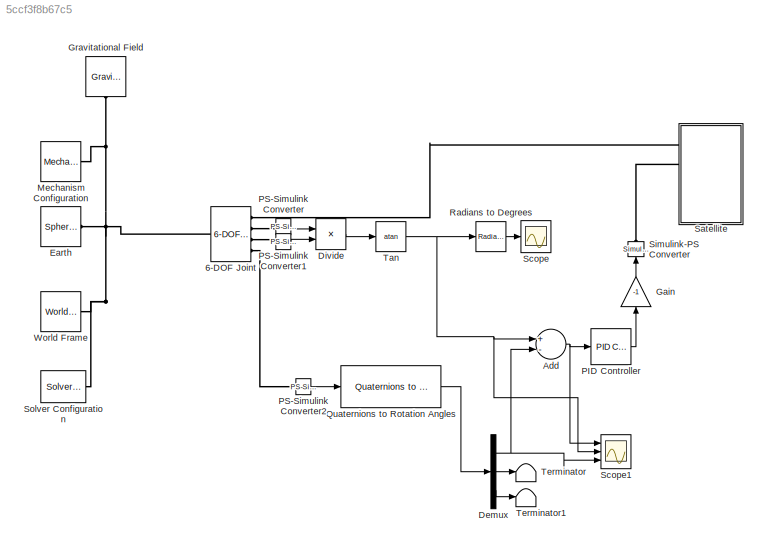
MODEL slx_5ccf3f8b67c5
KIND model
CONFIG AbsTol = auto
CONFIG EnableMultiTasking = off
CONFIG FixedStep = auto
CONFIG MaxStep = auto
CONFIG MinStep = auto
CONFIG RelTol = 1e-3
CONFIG SampleTimeConstraint = Unconstrained
CONFIG Solver = VariableStepAuto
CONFIG SolverName = VariableStepAuto
CONFIG StartTime = 0.0
CONFIG StopTime = 1000
WORKSPACE source: MATLAB code (in-file)
WORKSPACE Re = 6378e3  (= 6378000)
WORKSPACE h = 600e3  (= 600000)
WORKSPACE G = 6.67408e-11
WORKSPACE Me = 5.972e24  (= 5.972e+24)
WORKSPACE code: Sat.Vy = sqrt(G*Me/(Re+h));
BLOCK [Reference] 6-DOF Joint  REF=sm_lib/Joints/6-DOF Joint
  Ports = [0, 0, 0, 0, 0, 1, 4]
  SourceBlock = sm_lib/Joints/6-DOF Joint
  SourceProductBaseCode = MS
  SourceProductName = Simscape Multibody
  SourceType = 6-DOF Joint
BLOCK [Sum] Add
  InputSameDT = off
  Inputs = +-
  OutDataTypeStr = Inherit: Inherit via internal rule
  Ports = [2, 1]
  SaturateOnIntegerOverflow = off
BLOCK [Demux] Demux
  DisplayOption = bar
  Outputs = 3
  Ports = [1, 3]
BLOCK [Product] Divide
  InputSameDT = off
  Inputs = /*
  OutDataTypeStr = Inherit: Inherit via internal rule
  Ports = [2, 1]
  RndMeth = Floor
  SaturateOnIntegerOverflow = off
BLOCK [Reference] Earth  REF=sm_lib/Body Elements/Spherical Solid
  Ports = [0, 0, 0, 0, 0, 0, 1]
  SourceBlock = sm_lib/Body Elements/Spherical Solid
  SourceProductBaseCode = MS
  SourceProductName = Simscape Multibody
  SourceType = Spherical Solid
BLOCK [Gain] Gain
  Gain = -1
  OutDataTypeStr = Inherit: Inherit via internal rule
  ParamDataTypeStr = Inherit: Inherit via internal rule
  SaturateOnIntegerOverflow = off
BLOCK [Reference] Gravitational Field  REF=sm_lib/Forces and
Torques/Gravitational
Field
  Ports = [0, 0, 0, 0, 0, 1]
  SourceBlock = sm_lib/Forces and\nTorques/Gravitational\nField
  SourceProductBaseCode = MS
  SourceProductName = Simscape Multibody
  SourceType = Gravitational\nField
BLOCK [Reference] Mechanism Configuration  REF=sm_lib/Utilities/Mechanism
Configuration
  Ports = [0, 0, 0, 0, 0, 0, 1]
  SourceBlock = sm_lib/Utilities/Mechanism\nConfiguration
  SourceProductBaseCode = MS
  SourceProductName = Simscape Multibody
  SourceType = Mechanism\nConfiguration
BLOCK [Reference] PID Controller  REF=simulink/Continuous/PID Controller
  Ports = [1, 1]
  SourceBlock = simulink/Continuous/PID Controller
  SourceProductBaseCode = SL
  SourceProductName = Simulink
  SourceType = PID 1dof
BLOCK [Reference] PS-Simulink Converter  REF=nesl_utility/PS-Simulink
Converter
  Ports = [0, 1, 0, 0, 0, 1]
  SourceBlock = nesl_utility/PS-Simulink\nConverter
  SourceProductBaseCode = SS
  SourceProductName = Simscape
  SourceType = PS-Simulink\nConverter
BLOCK [Reference] PS-Simulink Converter1  REF=nesl_utility/PS-Simulink
Converter
  Ports = [0, 1, 0, 0, 0, 1]
  SourceBlock = nesl_utility/PS-Simulink\nConverter
  SourceProductBaseCode = SS
  SourceProductName = Simscape
  SourceType = PS-Simulink\nConverter
BLOCK [Reference] PS-Simulink Converter2  REF=nesl_utility/PS-Simulink
Converter
  Ports = [0, 1, 0, 0, 0, 1]
  SourceBlock = nesl_utility/PS-Simulink\nConverter
  SourceProductBaseCode = SS
  SourceProductName = Simscape
  SourceType = PS-Simulink\nConverter
BLOCK [Reference] Quaternions to Rotation Angles  REF=sharedtransform/Quaternions to Rotation Angles
  AttributesFormatString = Rotation Order: %<rotationOrder>
  Ports = [1, 1]
  SourceBlock = sharedtransform/Quaternions to Rotation Angles
  SourceProductBaseCode = AE
  SourceProductName = Aerospace Blockset
  SourceType = Quat2Ang
BLOCK [Reference] Radians to Degrees  REF=simulink_extras/Transformations/Radians
to Degrees
  Ports = [1, 1]
  SourceBlock = simulink_extras/Transformations/Radians\nto Degrees
  SourceProductBaseCode = SL
  SourceProductName = Simulink
  SourceType = RadiansToDegrees
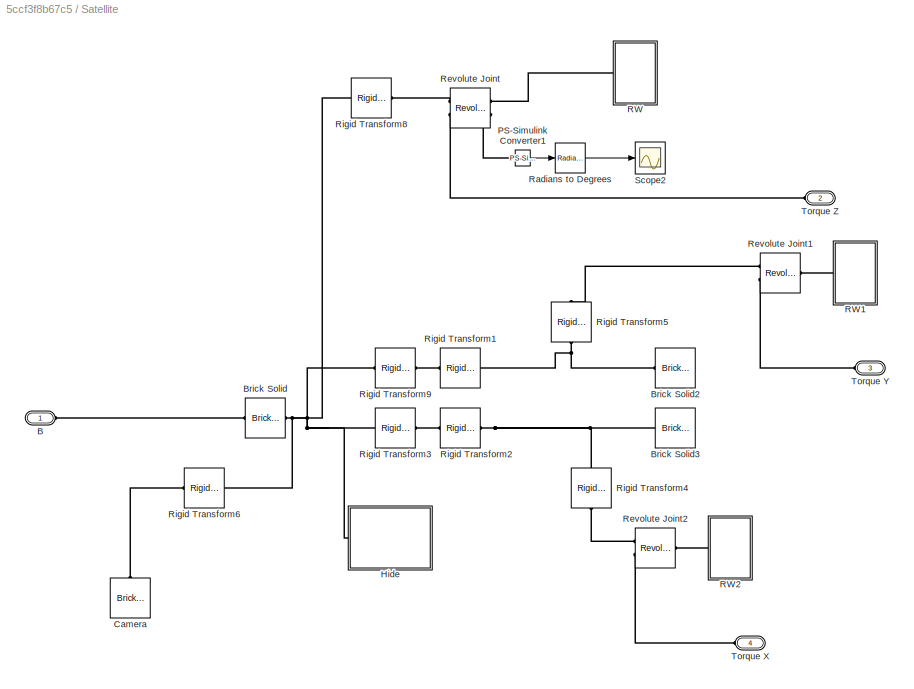
BLOCK [SubSystem] Satellite
  Ports = [0, 0, 0, 0, 0, 4]
  RequestExecContextInheritance = off
BLOCK [PMIOPort] Satellite/B
  Side = Left
BLOCK [Reference] Satellite/Brick Solid  REF=sm_lib/Body Elements/Brick Solid
  Ports = [0, 0, 0, 0, 0, 1, 1]
  SourceBlock = sm_lib/Body Elements/Brick Solid
  SourceProductBaseCode = MS
  SourceProductName = Simscape Multibody
  SourceType = Brick Solid
BLOCK [Reference] Satellite/Brick Solid2  REF=sm_lib/Body Elements/Brick Solid
  Ports = [0, 0, 0, 0, 0, 0, 1]
  SourceBlock = sm_lib/Body Elements/Brick Solid
  SourceProductBaseCode = MS
  SourceProductName = Simscape Multibody
  SourceType = Brick Solid
BLOCK [Reference] Satellite/Brick Solid3  REF=sm_lib/Body Elements/Brick Solid
  Ports = [0, 0, 0, 0, 0, 0, 1]
  SourceBlock = sm_lib/Body Elements/Brick Solid
  SourceProductBaseCode = MS
  SourceProductName = Simscape Multibody
  SourceType = Brick Solid
BLOCK [Reference] Satellite/Camera  REF=sm_lib/Body Elements/Brick Solid
  Ports = [0, 0, 0, 0, 0, 0, 1]
  SourceBlock = sm_lib/Body Elements/Brick Solid
  SourceProductBaseCode = MS
  SourceProductName = Simscape Multibody
  SourceType = Brick Solid
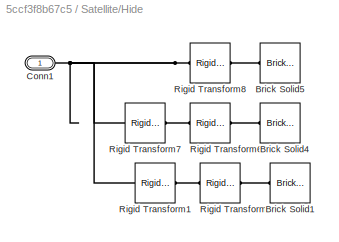
BLOCK [SubSystem] Satellite/Hide
  Ports = [0, 0, 0, 0, 0, 1]
  RequestExecContextInheritance = off
BLOCK [Reference] Satellite/Hide/Brick Solid1  REF=sm_lib/Body Elements/Brick Solid
  Ports = [0, 0, 0, 0, 0, 0, 1]
  SourceBlock = sm_lib/Body Elements/Brick Solid
  SourceProductBaseCode = MS
  SourceProductName = Simscape Multibody
  SourceType = Brick Solid
BLOCK [Reference] Satellite/Hide/Brick Solid4  REF=sm_lib/Body Elements/Brick Solid
  Ports = [0, 0, 0, 0, 0, 0, 1]
  SourceBlock = sm_lib/Body Elements/Brick Solid
  SourceProductBaseCode = MS
  SourceProductName = Simscape Multibody
  SourceType = Brick Solid
BLOCK [Reference] Satellite/Hide/Brick Solid5  REF=sm_lib/Body Elements/Brick Solid
  Ports = [0, 0, 0, 0, 0, 0, 1]
  SourceBlock = sm_lib/Body Elements/Brick Solid
  SourceProductBaseCode = MS
  SourceProductName = Simscape Multibody
  SourceType = Brick Solid
BLOCK [PMIOPort] Satellite/Hide/Conn1
  Side = Left
BLOCK [Reference] Satellite/Hide/Rigid Transform  REF=sm_lib/Frames and
Transforms/Rigid
Transform
  Ports = [0, 0, 0, 0, 0, 1, 1]
  SourceBlock = sm_lib/Frames and\nTransforms/Rigid\nTransform
  SourceProductBaseCode = MS
  SourceProductName = Simscape Multibody
  SourceType = Rigid\nTransform
BLOCK [Reference] Satellite/Hide/Rigid Transform1  REF=sm_lib/Frames and
Transforms/Rigid
Transform
  Ports = [0, 0, 0, 0, 0, 1, 1]
  SourceBlock = sm_lib/Frames and\nTransforms/Rigid\nTransform
  SourceProductBaseCode = MS
  SourceProductName = Simscape Multibody
  SourceType = Rigid\nTransform
BLOCK [Reference] Satellite/Hide/Rigid Transform6  REF=sm_lib/Frames and
Transforms/Rigid
Transform
  Ports = [0, 0, 0, 0, 0, 1, 1]
  SourceBlock = sm_lib/Frames and\nTransforms/Rigid\nTransform
  SourceProductBaseCode = MS
  SourceProductName = Simscape Multibody
  SourceType = Rigid\nTransform
BLOCK [Reference] Satellite/Hide/Rigid Transform7  REF=sm_lib/Frames and
Transforms/Rigid
Transform
  Ports = [0, 0, 0, 0, 0, 1, 1]
  SourceBlock = sm_lib/Frames and\nTransforms/Rigid\nTransform
  SourceProductBaseCode = MS
  SourceProductName = Simscape Multibody
  SourceType = Rigid\nTransform
BLOCK [Reference] Satellite/Hide/Rigid Transform8  REF=sm_lib/Frames and
Transforms/Rigid
Transform
  Ports = [0, 0, 0, 0, 0, 1, 1]
  SourceBlock = sm_lib/Frames and\nTransforms/Rigid\nTransform
  SourceProductBaseCode = MS
  SourceProductName = Simscape Multibody
  SourceType = Rigid\nTransform
BLOCK [Reference] Satellite/PS-Simulink Converter1  REF=nesl_utility/PS-Simulink
Converter
  Ports = [0, 1, 0, 0, 0, 1]
  SourceBlock = nesl_utility/PS-Simulink\nConverter
  SourceProductBaseCode = SS
  SourceProductName = Simscape
  SourceType = PS-Simulink\nConverter
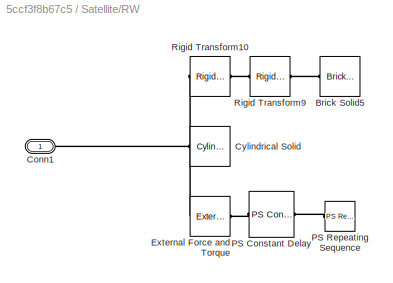
BLOCK [SubSystem] Satellite/RW
  Ports = [0, 0, 0, 0, 0, 1]
  RequestExecContextInheritance = off
BLOCK [Reference] Satellite/RW/Brick Solid5  REF=sm_lib/Body Elements/Brick Solid
  Ports = [0, 0, 0, 0, 0, 0, 1]
  SourceBlock = sm_lib/Body Elements/Brick Solid
  SourceProductBaseCode = MS
  SourceProductName = Simscape Multibody
  SourceType = Brick Solid
BLOCK [PMIOPort] Satellite/RW/Conn1
  Side = Left
BLOCK [Reference] Satellite/RW/Cylindrical Solid  REF=sm_lib/Body Elements/Cylindrical Solid
  Ports = [0, 0, 0, 0, 0, 0, 1]
  SourceBlock = sm_lib/Body Elements/Cylindrical Solid
  SourceProductBaseCode = MS
  SourceProductName = Simscape Multibody
  SourceType = Cylindrical Solid
BLOCK [Reference] Satellite/RW/External Force and Torque  REF=sm_lib/Forces and
Torques/External Force
and Torque
  Commented = on
  Ports = [0, 0, 0, 0, 0, 1, 1]
  SourceBlock = sm_lib/Forces and\nTorques/External Force\nand Torque
  SourceProductBaseCode = MS
  SourceProductName = Simscape Multibody
  SourceType = External Force\nand Torque
BLOCK [Reference] Satellite/RW/PS Constant Delay  REF=fl_lib/Physical Signals/Delays/PS Constant Delay
  Commented = on
  Ports = [0, 0, 0, 0, 0, 1, 1]
  SourceBlock = fl_lib/Physical Signals/Delays/PS Constant Delay
  SourceProductBaseCode = SS
  SourceProductName = Simscape
  SourceType = PS Constant Delay
BLOCK [Reference] Satellite/RW/PS Repeating Sequence  REF=fl_lib/Physical Signals/Sources/PS Repeating
Sequence
  Commented = on
  Ports = [0, 0, 0, 0, 0, 0, 1]
  SourceBlock = fl_lib/Physical Signals/Sources/PS Repeating\nSequence
  SourceProductBaseCode = SS
  SourceProductName = Simscape
  SourceType = PS Repeating\nSequence
BLOCK [Reference] Satellite/RW/Rigid Transform10  REF=sm_lib/Frames and
Transforms/Rigid
Transform
  Ports = [0, 0, 0, 0, 0, 1, 1]
  SourceBlock = sm_lib/Frames and\nTransforms/Rigid\nTransform
  SourceProductBaseCode = MS
  SourceProductName = Simscape Multibody
  SourceType = Rigid\nTransform
BLOCK [Reference] Satellite/RW/Rigid Transform9  REF=sm_lib/Frames and
Transforms/Rigid
Transform
  Ports = [0, 0, 0, 0, 0, 1, 1]
  SourceBlock = sm_lib/Frames and\nTransforms/Rigid\nTransform
  SourceProductBaseCode = MS
  SourceProductName = Simscape Multibody
  SourceType = Rigid\nTransform
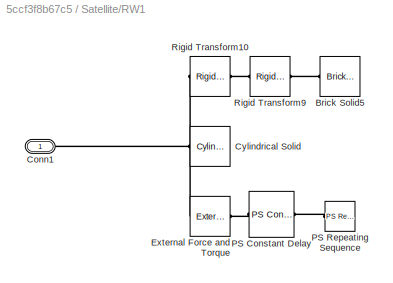
BLOCK [SubSystem] Satellite/RW1
  Ports = [0, 0, 0, 0, 0, 1]
  RequestExecContextInheritance = off
BLOCK [Reference] Satellite/RW1/Brick Solid5  REF=sm_lib/Body Elements/Brick Solid
  Ports = [0, 0, 0, 0, 0, 0, 1]
  SourceBlock = sm_lib/Body Elements/Brick Solid
  SourceProductBaseCode = MS
  SourceProductName = Simscape Multibody
  SourceType = Brick Solid
BLOCK [PMIOPort] Satellite/RW1/Conn1
  Side = Left
BLOCK [Reference] Satellite/RW1/Cylindrical Solid  REF=sm_lib/Body Elements/Cylindrical Solid
  Ports = [0, 0, 0, 0, 0, 0, 1]
  SourceBlock = sm_lib/Body Elements/Cylindrical Solid
  SourceProductBaseCode = MS
  SourceProductName = Simscape Multibody
  SourceType = Cylindrical Solid
BLOCK [Reference] Satellite/RW1/External Force and Torque  REF=sm_lib/Forces and
Torques/External Force
and Torque
  Commented = on
  Ports = [0, 0, 0, 0, 0, 1, 1]
  SourceBlock = sm_lib/Forces and\nTorques/External Force\nand Torque
  SourceProductBaseCode = MS
  SourceProductName = Simscape Multibody
  SourceType = External Force\nand Torque
BLOCK [Reference] Satellite/RW1/PS Constant Delay  REF=fl_lib/Physical Signals/Delays/PS Constant Delay
  Commented = on
  Ports = [0, 0, 0, 0, 0, 1, 1]
  SourceBlock = fl_lib/Physical Signals/Delays/PS Constant Delay
  SourceProductBaseCode = SS
  SourceProductName = Simscape
  SourceType = PS Constant Delay
BLOCK [Reference] Satellite/RW1/PS Repeating Sequence  REF=fl_lib/Physical Signals/Sources/PS Repeating
Sequence
  Commented = on
  Ports = [0, 0, 0, 0, 0, 0, 1]
  SourceBlock = fl_lib/Physical Signals/Sources/PS Repeating\nSequence
  SourceProductBaseCode = SS
  SourceProductName = Simscape
  SourceType = PS Repeating\nSequence
BLOCK [Reference] Satellite/RW1/Rigid Transform10  REF=sm_lib/Frames and
Transforms/Rigid
Transform
  Ports = [0, 0, 0, 0, 0, 1, 1]
  SourceBlock = sm_lib/Frames and\nTransforms/Rigid\nTransform
  SourceProductBaseCode = MS
  SourceProductName = Simscape Multibody
  SourceType = Rigid\nTransform
BLOCK [Reference] Satellite/RW1/Rigid Transform9  REF=sm_lib/Frames and
Transforms/Rigid
Transform
  Ports = [0, 0, 0, 0, 0, 1, 1]
  SourceBlock = sm_lib/Frames and\nTransforms/Rigid\nTransform
  SourceProductBaseCode = MS
  SourceProductName = Simscape Multibody
  SourceType = Rigid\nTransform
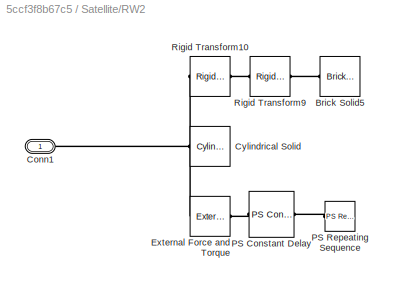
BLOCK [SubSystem] Satellite/RW2
  Ports = [0, 0, 0, 0, 0, 1]
  RequestExecContextInheritance = off
BLOCK [Reference] Satellite/RW2/Brick Solid5  REF=sm_lib/Body Elements/Brick Solid
  Ports = [0, 0, 0, 0, 0, 0, 1]
  SourceBlock = sm_lib/Body Elements/Brick Solid
  SourceProductBaseCode = MS
  SourceProductName = Simscape Multibody
  SourceType = Brick Solid
BLOCK [PMIOPort] Satellite/RW2/Conn1
  Side = Left
BLOCK [Reference] Satellite/RW2/Cylindrical Solid  REF=sm_lib/Body Elements/Cylindrical Solid
  Ports = [0, 0, 0, 0, 0, 0, 1]
  SourceBlock = sm_lib/Body Elements/Cylindrical Solid
  SourceProductBaseCode = MS
  SourceProductName = Simscape Multibody
  SourceType = Cylindrical Solid
BLOCK [Reference] Satellite/RW2/External Force and Torque  REF=sm_lib/Forces and
Torques/External Force
and Torque
  Commented = on
  Ports = [0, 0, 0, 0, 0, 1, 1]
  SourceBlock = sm_lib/Forces and\nTorques/External Force\nand Torque
  SourceProductBaseCode = MS
  SourceProductName = Simscape Multibody
  SourceType = External Force\nand Torque
BLOCK [Reference] Satellite/RW2/PS Constant Delay  REF=fl_lib/Physical Signals/Delays/PS Constant Delay
  Commented = on
  Ports = [0, 0, 0, 0, 0, 1, 1]
  SourceBlock = fl_lib/Physical Signals/Delays/PS Constant Delay
  SourceProductBaseCode = SS
  SourceProductName = Simscape
  SourceType = PS Constant Delay
BLOCK [Reference] Satellite/RW2/PS Repeating Sequence  REF=fl_lib/Physical Signals/Sources/PS Repeating
Sequence
  Commented = on
  Ports = [0, 0, 0, 0, 0, 0, 1]
  SourceBlock = fl_lib/Physical Signals/Sources/PS Repeating\nSequence
  SourceProductBaseCode = SS
  SourceProductName = Simscape
  SourceType = PS Repeating\nSequence
BLOCK [Reference] Satellite/RW2/Rigid Transform10  REF=sm_lib/Frames and
Transforms/Rigid
Transform
  Ports = [0, 0, 0, 0, 0, 1, 1]
  SourceBlock = sm_lib/Frames and\nTransforms/Rigid\nTransform
  SourceProductBaseCode = MS
  SourceProductName = Simscape Multibody
  SourceType = Rigid\nTransform
BLOCK [Reference] Satellite/RW2/Rigid Transform9  REF=sm_lib/Frames and
Transforms/Rigid
Transform
  Ports = [0, 0, 0, 0, 0, 1, 1]
  SourceBlock = sm_lib/Frames and\nTransforms/Rigid\nTransform
  SourceProductBaseCode = MS
  SourceProductName = Simscape Multibody
  SourceType = Rigid\nTransform
BLOCK [Reference] Satellite/Radians to Degrees  REF=simulink_extras/Transformations/Radians
to Degrees
  Ports = [1, 1]
  SourceBlock = simulink_extras/Transformations/Radians\nto Degrees
  SourceProductBaseCode = SL
  SourceProductName = Simulink
  SourceType = RadiansToDegrees
BLOCK [Reference] Satellite/Revolute Joint  REF=sm_lib/Joints/Revolute Joint
  Ports = [0, 0, 0, 0, 0, 2, 2]
  SourceBlock = sm_lib/Joints/Revolute Joint
  SourceProductBaseCode = MS
  SourceProductName = Simscape Multibody
  SourceType = Revolute Joint
BLOCK [Reference] Satellite/Revolute Joint1  REF=sm_lib/Joints/Revolute Joint
  Ports = [0, 0, 0, 0, 0, 2, 1]
  SourceBlock = sm_lib/Joints/Revolute Joint
  SourceProductBaseCode = MS
  SourceProductName = Simscape Multibody
  SourceType = Revolute Joint
BLOCK [Reference] Satellite/Revolute Joint2  REF=sm_lib/Joints/Revolute Joint
  Ports = [0, 0, 0, 0, 0, 2, 1]
  SourceBlock = sm_lib/Joints/Revolute Joint
  SourceProductBaseCode = MS
  SourceProductName = Simscape Multibody
  SourceType = Revolute Joint
BLOCK [Reference] Satellite/Rigid Transform1  REF=sm_lib/Frames and
Transforms/Rigid
Transform
  Ports = [0, 0, 0, 0, 0, 1, 1]
  SourceBlock = sm_lib/Frames and\nTransforms/Rigid\nTransform
  SourceProductBaseCode = MS
  SourceProductName = Simscape Multibody
  SourceType = Rigid\nTransform
BLOCK [Reference] Satellite/Rigid Transform2  REF=sm_lib/Frames and
Transforms/Rigid
Transform
  Ports = [0, 0, 0, 0, 0, 1, 1]
  SourceBlock = sm_lib/Frames and\nTransforms/Rigid\nTransform
  SourceProductBaseCode = MS
  SourceProductName = Simscape Multibody
  SourceType = Rigid\nTransform
BLOCK [Reference] Satellite/Rigid Transform3  REF=sm_lib/Frames and
Transforms/Rigid
Transform
  Ports = [0, 0, 0, 0, 0, 1, 1]
  SourceBlock = sm_lib/Frames and\nTransforms/Rigid\nTransform
  SourceProductBaseCode = MS
  SourceProductName = Simscape Multibody
  SourceType = Rigid\nTransform
BLOCK [Reference] Satellite/Rigid Transform4  REF=sm_lib/Frames and
Transforms/Rigid
Transform
  Ports = [0, 0, 0, 0, 0, 1, 1]
  SourceBlock = sm_lib/Frames and\nTransforms/Rigid\nTransform
  SourceProductBaseCode = MS
  SourceProductName = Simscape Multibody
  SourceType = Rigid\nTransform
BLOCK [Reference] Satellite/Rigid Transform5  REF=sm_lib/Frames and
Transforms/Rigid
Transform
  Ports = [0, 0, 0, 0, 0, 1, 1]
  SourceBlock = sm_lib/Frames and\nTransforms/Rigid\nTransform
  SourceProductBaseCode = MS
  SourceProductName = Simscape Multibody
  SourceType = Rigid\nTransform
BLOCK [Reference] Satellite/Rigid Transform6  REF=sm_lib/Frames and
Transforms/Rigid
Transform
  Ports = [0, 0, 0, 0, 0, 1, 1]
  SourceBlock = sm_lib/Frames and\nTransforms/Rigid\nTransform
  SourceProductBaseCode = MS
  SourceProductName = Simscape Multibody
  SourceType = Rigid\nTransform
BLOCK [Reference] Satellite/Rigid Transform8  REF=sm_lib/Frames and
Transforms/Rigid
Transform
  Ports = [0, 0, 0, 0, 0, 1, 1]
  SourceBlock = sm_lib/Frames and\nTransforms/Rigid\nTransform
  SourceProductBaseCode = MS
  SourceProductName = Simscape Multibody
  SourceType = Rigid\nTransform
BLOCK [Reference] Satellite/Rigid Transform9  REF=sm_lib/Frames and
Transforms/Rigid
Transform
  Ports = [0, 0, 0, 0, 0, 1, 1]
  SourceBlock = sm_lib/Frames and\nTransforms/Rigid\nTransform
  SourceProductBaseCode = MS
  SourceProductName = Simscape Multibody
  SourceType = Rigid\nTransform
BLOCK [Scope] Satellite/Scope2
  Floating = off
  NumInputPorts = 1
  Ports = [1]
  ScopeSpecificationString = Simulink.scopes.TimeScopeBlockCfg('CurrentConfiguration', extmgr.ConfigurationSet(extmgr.Configuration('Core','General UI',true),extmgr.Configuration('Core','Source UI',true),extmgr.Configuration('Sources','WiredSimulink',true,'DataLoggingVariableName','ScopeData2'),extmgr.Configuration('Visuals','Time Domain',true,'SerializedDisplays',{struct('MinYLimReal','322.66018','MaxYLimReal','367.69206','Y...<+1420ch>
BLOCK [PMIOPort] Satellite/Torque X
  Port = 4
  Side = Left
BLOCK [PMIOPort] Satellite/Torque Y
  Port = 3
  Side = Left
BLOCK [PMIOPort] Satellite/Torque Z
  Port = 2
  Side = Left
BLOCK [Scope] Scope
  Floating = off
  NumInputPorts = 1
  Ports = [1]
  ScopeSpecificationString = Simulink.scopes.TimeScopeBlockCfg('CurrentConfiguration', extmgr.ConfigurationSet(extmgr.Configuration('Core','General UI',true),extmgr.Configuration('Core','Source UI',true),extmgr.Configuration('Sources','WiredSimulink',true,'DataLoggingVariableName','ScopeData1'),extmgr.Configuration('Visuals','Time Domain',true,'SerializedDisplays',{struct('MinYLimReal','-111.00092','MaxYLimReal','112.33344','...<+1419ch>
BLOCK [Scope] Scope1
  Floating = off
  NumInputPorts = 3
  Ports = [3]
  ScopeSpecificationString = Simulink.scopes.TimeScopeBlockCfg('CurrentConfiguration', extmgr.ConfigurationSet(extmgr.Configuration('Core','General UI',true),extmgr.Configuration('Core','Source UI',true),extmgr.Configuration('Sources','WiredSimulink',true,'DataLoggingVariableName','ScopeData1'),extmgr.Configuration('Visuals','Time Domain',true,'SerializedDisplays',{struct('MinYLimReal','-5.39495','MaxYLimReal','4.09009','YLab...<+1404ch>
BLOCK [Reference] Simulink-PS Converter  REF=nesl_utility/Simulink-PS
Converter
  Ports = [1, 0, 0, 0, 0, 0, 1]
  SourceBlock = nesl_utility/Simulink-PS\nConverter
  SourceProductBaseCode = SS
  SourceProductName = Simscape
  SourceType = Simulink-PS\nConverter
BLOCK [Reference] Solver Configuration  REF=nesl_utility/Solver
Configuration
  Ports = [0, 0, 0, 0, 0, 0, 1]
  SourceBlock = nesl_utility/Solver\nConfiguration
  SourceProductBaseCode = SS
  SourceProductName = Simscape
  SourceType = Solver\nConfiguration
BLOCK [Trigonometry] Tan
  Operator = atan
  Ports = [1, 1]
BLOCK [Terminator] Terminator
BLOCK [Terminator] Terminator1
BLOCK [Reference] World Frame  REF=sm_lib/Frames and
Transforms/World Frame
  Ports = [0, 0, 0, 0, 0, 0, 1]
  SourceBlock = sm_lib/Frames and\nTransforms/World Frame
  SourceProductBaseCode = MS
  SourceProductName = Simscape Multibody
  SourceType = World Frame
NET Add:1 -> PID Controller:1, Scope1:1
NET Demux:1 -> Add:2, Scope1:3
LINE Demux:2 -> Terminator:1
LINE Demux:3 -> Terminator1:1
LINE Divide:1 -> Tan:1
LINE Gain:1 -> Simulink-PS Converter:1
LINE PID Controller:1 -> Gain:1
LINE PS-Simulink Converter1:1 -> Divide:2
LINE PS-Simulink Converter2:1 -> Quaternions to Rotation Angles:1
LINE PS-Simulink Converter:1 -> Divide:1
LINE Quaternions to Rotation Angles:1 -> Demux:1
LINE Radians to Degrees:1 -> Scope:1
LINE Satellite/PS-Simulink Converter1:1 -> Satellite/Radians to Degrees:1
LINE Satellite/Radians to Degrees:1 -> Satellite/Scope2:1
NET Tan:1 -> Add:1, Radians to Degrees:1, Scope1:2
PNET net1: 6-DOF Joint:LConn1 -- Earth:RConn1 -- Gravitational Field:LConn1 -- Mechanism Configuration:RConn1 -- Solver Configuration:RConn1 -- World Frame:RConn1
PLINE 6-DOF Joint:RConn1 -- Satellite:LConn1
PLINE 6-DOF Joint:RConn2 -- PS-Simulink Converter:LConn1
PLINE 6-DOF Joint:RConn3 -- PS-Simulink Converter1:LConn1
PLINE 6-DOF Joint:RConn4 -- PS-Simulink Converter2:LConn1
PLINE Satellite/B:RConn1 -- Satellite/Brick Solid:RConn1
PNET net2: Satellite/Brick Solid2:RConn1 -- Satellite/Rigid Transform1:RConn1 -- Satellite/Rigid Transform5:LConn1
PNET net3: Satellite/Brick Solid3:RConn1 -- Satellite/Rigid Transform2:RConn1 -- Satellite/Rigid Transform4:LConn1
PNET net4: Satellite/Brick Solid:LConn1 -- Satellite/Hide:LConn1 -- Satellite/Rigid Transform3:LConn1 -- Satellite/Rigid Transform6:RConn1 -- Satellite/Rigid Transform8:LConn1 -- Satellite/Rigid Transform9:LConn1
PLINE Satellite/Camera:RConn1 -- Satellite/Rigid Transform6:LConn1
PLINE Satellite/Hide/Brick Solid1:RConn1 -- Satellite/Hide/Rigid Transform:RConn1
PLINE Satellite/Hide/Brick Solid4:RConn1 -- Satellite/Hide/Rigid Transform6:RConn1
PLINE Satellite/Hide/Brick Solid5:RConn1 -- Satellite/Hide/Rigid Transform8:RConn1
PNET net5: Satellite/Hide/Conn1:RConn1 -- Satellite/Hide/Rigid Transform1:LConn1 -- Satellite/Hide/Rigid Transform7:LConn1 -- Satellite/Hide/Rigid Transform8:LConn1
PLINE Satellite/Hide/Rigid Transform1:RConn1 -- Satellite/Hide/Rigid Transform:LConn1
PLINE Satellite/Hide/Rigid Transform6:LConn1 -- Satellite/Hide/Rigid Transform7:RConn1
PLINE Satellite/PS-Simulink Converter1:LConn1 -- Satellite/Revolute Joint:RConn2
PLINE Satellite/RW/Brick Solid5:RConn1 -- Satellite/RW/Rigid Transform9:RConn1
PNET net6: Satellite/RW/Conn1:RConn1 -- Satellite/RW/Cylindrical Solid:RConn1 -- Satellite/RW/External Force and Torque:RConn1 -- Satellite/RW/Rigid Transform10:LConn1
PLINE Satellite/RW/External Force and Torque:LConn1 -- Satellite/RW/PS Constant Delay:RConn1
PLINE Satellite/RW/PS Constant Delay:LConn1 -- Satellite/RW/PS Repeating Sequence:RConn1
PLINE Satellite/RW/Rigid Transform10:RConn1 -- Satellite/RW/Rigid Transform9:LConn1
PLINE Satellite/RW1/Brick Solid5:RConn1 -- Satellite/RW1/Rigid Transform9:RConn1
PNET net7: Satellite/RW1/Conn1:RConn1 -- Satellite/RW1/Cylindrical Solid:RConn1 -- Satellite/RW1/External Force and Torque:RConn1 -- Satellite/RW1/Rigid Transform10:LConn1
PLINE Satellite/RW1/External Force and Torque:LConn1 -- Satellite/RW1/PS Constant Delay:RConn1
PLINE Satellite/RW1/PS Constant Delay:LConn1 -- Satellite/RW1/PS Repeating Sequence:RConn1
PLINE Satellite/RW1/Rigid Transform10:RConn1 -- Satellite/RW1/Rigid Transform9:LConn1
PLINE Satellite/RW1:LConn1 -- Satellite/Revolute Joint1:RConn1
PLINE Satellite/RW2/Brick Solid5:RConn1 -- Satellite/RW2/Rigid Transform9:RConn1
PNET net8: Satellite/RW2/Conn1:RConn1 -- Satellite/RW2/Cylindrical Solid:RConn1 -- Satellite/RW2/External Force and Torque:RConn1 -- Satellite/RW2/Rigid Transform10:LConn1
PLINE Satellite/RW2/External Force and Torque:LConn1 -- Satellite/RW2/PS Constant Delay:RConn1
PLINE Satellite/RW2/PS Constant Delay:LConn1 -- Satellite/RW2/PS Repeating Sequence:RConn1
PLINE Satellite/RW2/Rigid Transform10:RConn1 -- Satellite/RW2/Rigid Transform9:LConn1
PLINE Satellite/RW2:LConn1 -- Satellite/Revolute Joint2:RConn1
PLINE Satellite/RW:LConn1 -- Satellite/Revolute Joint:RConn1
PLINE Satellite/Revolute Joint1:LConn1 -- Satellite/Rigid Transform5:RConn1
PLINE Satellite/Revolute Joint1:LConn2 -- Satellite/Torque Y:RConn1
PLINE Satellite/Revolute Joint2:LConn1 -- Satellite/Rigid Transform4:RConn1
PLINE Satellite/Revolute Joint2:LConn2 -- Satellite/Torque X:RConn1
PLINE Satellite/Revolute Joint:LConn1 -- Satellite/Rigid Transform8:RConn1
PLINE Satellite/Revolute Joint:LConn2 -- Satellite/Torque Z:RConn1
PLINE Satellite/Rigid Transform1:LConn1 -- Satellite/Rigid Transform9:RConn1
PLINE Satellite/Rigid Transform2:LConn1 -- Satellite/Rigid Transform3:RConn1
PLINE Satellite:LConn2 -- Simulink-PS Converter:RConn1
note: NET lines group one-source signal fan-out (src -> all destinations, sorted); 1:1 wires keep LINE; PNET lines group multi-terminal physical nets as a canonical sorted terminal list (undirected conserving connections); 2-terminal nets keep the pairwise PLINE form
